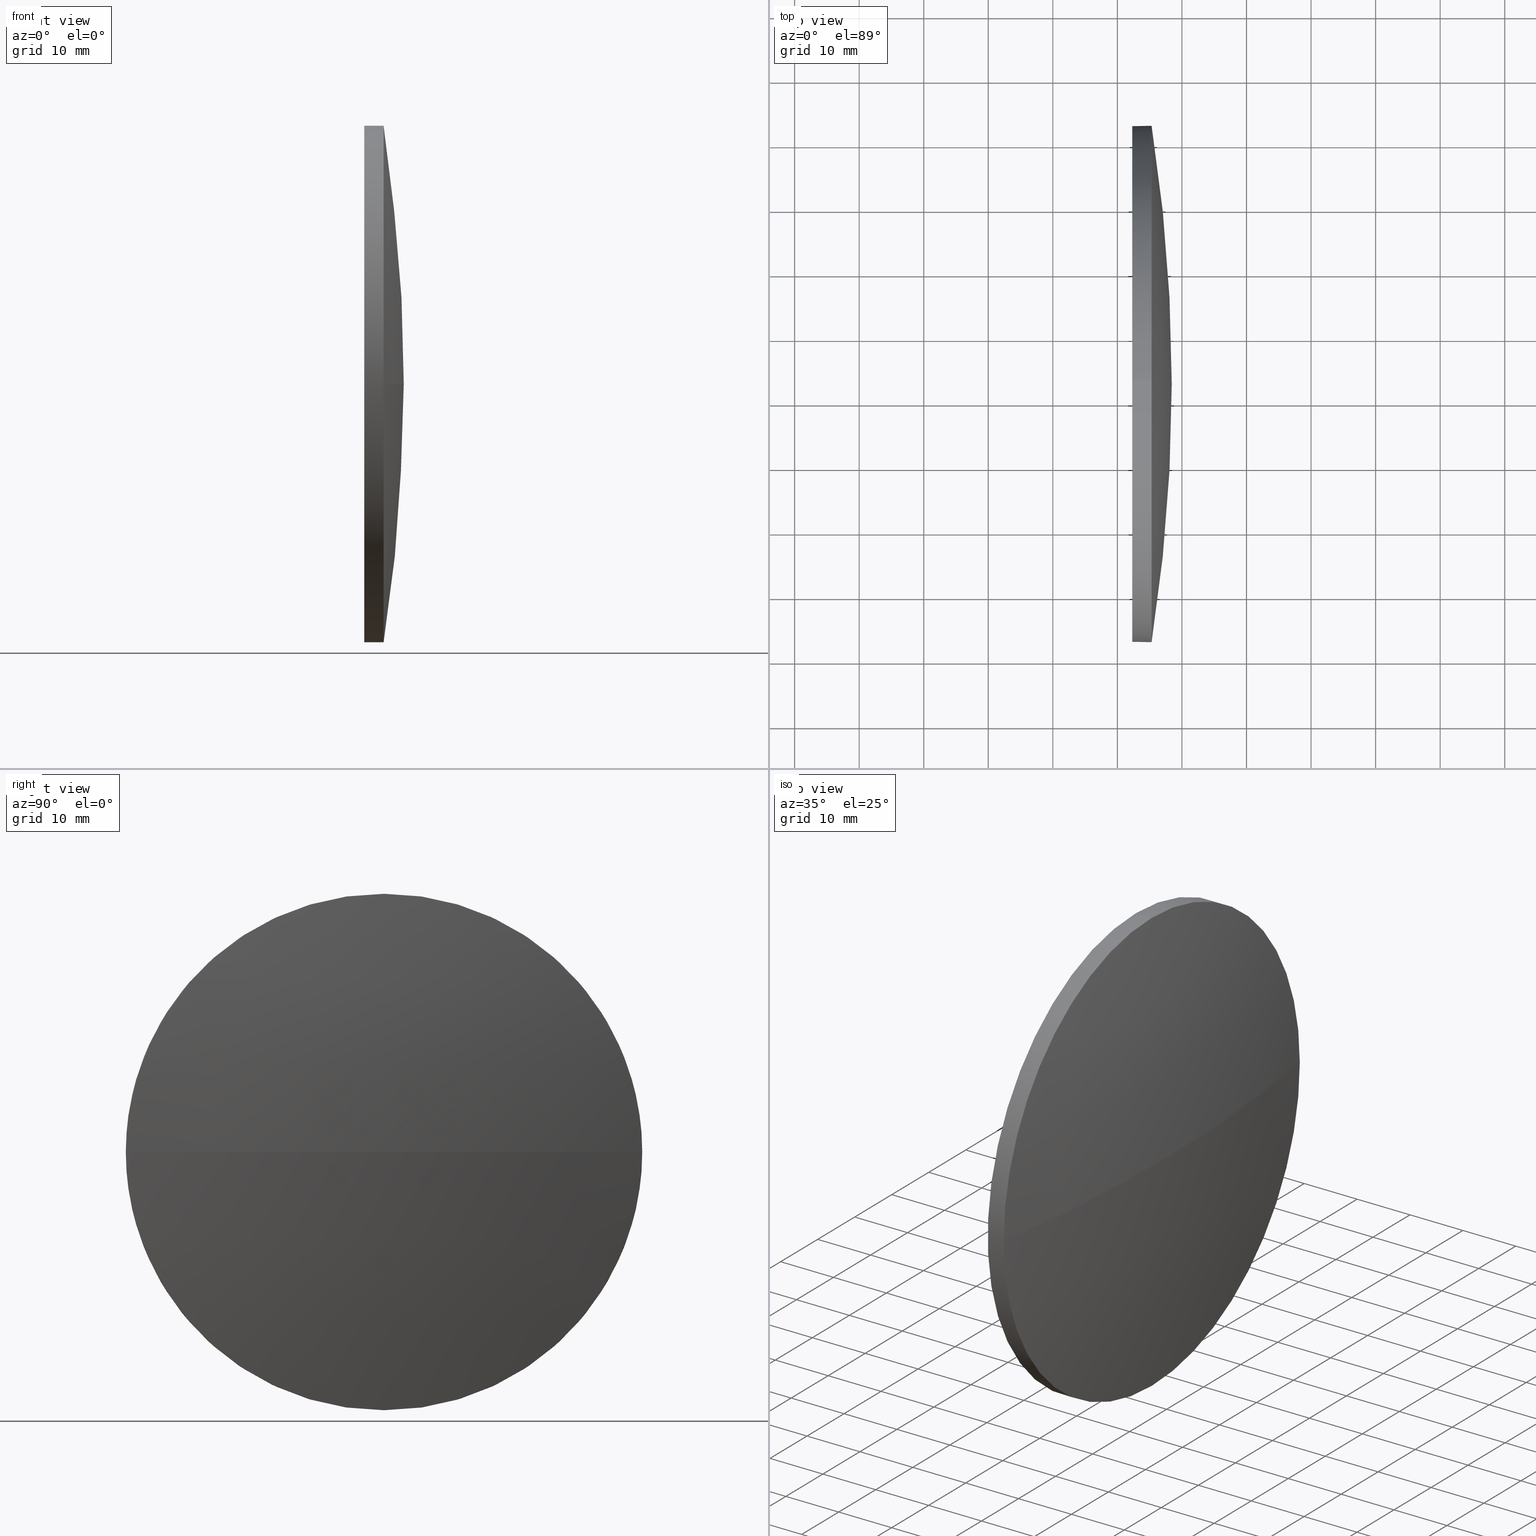
[diagram: canonical four-view strip — front | top / right | iso, engineering-drawing reading convention]
A machine part, canonical four-view strip (front | top / right | iso — engineering-drawing reading convention). The complete STEP part file that produces these views, byte-faithful:
ISO-10303-21;
HEADER;
FILE_DESCRIPTION (( 'STEP AP214' ),
    '1' );
FILE_NAME ('100080.STEP',
    '2019-05-10T08:49:28',
    ( '' ),
    ( '' ),
    'SwSTEP 2.0',
    'SolidWorks 2016',
    '' );
FILE_SCHEMA (( 'AUTOMOTIVE_DESIGN' ));
ENDSEC;

DATA;
#1 = CARTESIAN_POINT ( 'NONE',  ( 443.4758984606920600, 32.67751769391771400, 0.0000000000000000000 ) ) ;
#2 = DIRECTION ( 'NONE',  ( -1.000000000000000000, -0.0000000000000000000, -0.0000000000000000000 ) ) ;
#3 = COLOUR_RGB ( '',1.000000000000000000, 1.000000000000000000, 1.000000000000000000 ) ;
#4 = VERTEX_POINT ( 'NONE', #88 ) ;
#5 = PRODUCT_CONTEXT ( 'NONE', #73, 'mechanical' ) ;
#6 = VERTEX_POINT ( 'NONE', #179 ) ;
#7 = SPHERICAL_SURFACE ( 'NONE', #29, 257.9702564102560100 ) ;
#8 = PRESENTATION_LAYER_ASSIGNMENT (  '', '', ( #180 ) ) ;
#9 = CARTESIAN_POINT ( 'NONE',  ( 462.3008761382651500, 32.67751769391771400, 0.0000000000000000000 ) ) ;
#10 = LINE ( 'NONE', #117, #70 ) ;
#11 = PRESENTATION_STYLE_ASSIGNMENT (( #168 ) ) ;
#12 = CARTESIAN_POINT ( 'NONE',  ( 210.4506197280091400, 32.67751769391763600, 0.0000000000000000000 ) ) ;
#13 = CIRCLE ( 'NONE', #140, 40.00000000000000000 ) ;
#14 = SURFACE_SIDE_STYLE ('',( #118 ) ) ;
#15 = DIRECTION ( 'NONE',  ( -1.000000000000000000, -0.0000000000000000000, -0.0000000000000000000 ) ) ;
#16 = ORIENTED_EDGE ( 'NONE', *, *, #129, .F. ) ;
#17 =( NAMED_UNIT ( * ) PLANE_ANGLE_UNIT ( ) SI_UNIT ( $, .RADIAN. ) );
#18 = EDGE_CURVE ( 'NONE', #81, #6, #46, .T. ) ;
#19 = SURFACE_STYLE_FILL_AREA ( #33 ) ;
#20 = ADVANCED_FACE ( 'NONE', ( #125 ), #54, .T. ) ;
#21 = ADVANCED_BREP_SHAPE_REPRESENTATION ( '100080', ( #175, #55 ), #141 ) ;
#22 = DIRECTION ( 'NONE',  ( 0.0000000000000000000, 0.0000000000000000000, 1.000000000000000000 ) ) ;
#23 = DIRECTION ( 'NONE',  ( -1.000000000000000000, -0.0000000000000000000, -0.0000000000000000000 ) ) ;
#24 = DIRECTION ( 'NONE',  ( -1.000000000000000000, -0.0000000000000000000, -0.0000000000000000000 ) ) ;
#25 = PRODUCT_DEFINITION_SHAPE ( 'NONE', 'NONE',  #108 ) ;
#26 = EDGE_CURVE ( 'NONE', #92, #4, #119, .T. ) ;
#27 =( NAMED_UNIT ( * ) PLANE_ANGLE_UNIT ( ) SI_UNIT ( $, .RADIAN. ) );
#28 = ORIENTED_EDGE ( 'NONE', *, *, #79, .F. ) ;
#29 = AXIS2_PLACEMENT_3D ( 'NONE', #94, #166, #112 ) ;
#30 =( NAMED_UNIT ( * ) SI_UNIT ( $, .STERADIAN. ) SOLID_ANGLE_UNIT ( ) );
#31 = CARTESIAN_POINT ( 'NONE',  ( 462.3008761382651500, 32.67751769391771400, 40.00000000000000000 ) ) ;
#32 = CARTESIAN_POINT ( 'NONE',  ( 210.4506197280091400, 32.67751769391763600, 0.0000000000000000000 ) ) ;
#33 = FILL_AREA_STYLE ('',( #45 ) ) ;
#34 = PRODUCT_DEFINITION_CONTEXT ( 'detailed design', #173, 'design' ) ;
#35 = DIRECTION ( 'NONE',  ( 1.000000000000000000, 0.0000000000000000000, 0.0000000000000000000 ) ) ;
#36 = DIRECTION ( 'NONE',  ( 0.0000000000000000000, 0.0000000000000000000, 1.000000000000000000 ) ) ;
#37 = ORIENTED_EDGE ( 'NONE', *, *, #39, .T. ) ;
#38 = UNCERTAINTY_MEASURE_WITH_UNIT (LENGTH_MEASURE( 1.000000000000000100E-005 ), #130, 'distance_accuracy_value', 'NONE');
#39 = EDGE_CURVE ( 'NONE', #151, #66, #177, .T. ) ;
#40 = CLOSED_SHELL ( 'NONE', ( #20, #149, #48, #169, #99 ) ) ;
#41 = VECTOR ( 'NONE', #15, 1000.000000000000000 ) ;
#42 = AXIS2_PLACEMENT_3D ( 'NONE', #1, #77, #142 ) ;
#43 = CARTESIAN_POINT ( 'NONE',  ( 465.3008761382651500, 32.67751769391772100, -40.00000000000000000 ) ) ;
#44 = FACE_OUTER_BOUND ( 'NONE', #100, .T. ) ;
#45 = FILL_AREA_STYLE_COLOUR ( '', #3 ) ;
#46 = CIRCLE ( 'NONE', #106, 40.00000000000000000 ) ;
#47 = APPLICATION_PROTOCOL_DEFINITION ( 'draft international standard', 'automotive_design', 1998, #73 ) ;
#48 = ADVANCED_FACE ( 'NONE', ( #135 ), #178, .T. ) ;
#49 = CARTESIAN_POINT ( 'NONE',  ( 468.4208761382651000, 32.67751769391765000, 0.0000000000000000000 ) ) ;
#50 = CIRCLE ( 'NONE', #156, 40.00000000000000000 ) ;
#51 = EDGE_CURVE ( 'NONE', #4, #92, #13, .T. ) ;
#52 = EDGE_LOOP ( 'NONE', ( #80, #176, #98, #57 ) ) ;
#53 = MECHANICAL_DESIGN_GEOMETRIC_PRESENTATION_REPRESENTATION (  '', ( #180 ), #90 ) ;
#54 = CYLINDRICAL_SURFACE ( 'NONE', #114, 40.00000000000000000 ) ;
#55 = AXIS2_PLACEMENT_3D ( 'NONE', #172, #36, #35 ) ;
#56 = DIRECTION ( 'NONE',  ( 0.0000000000000000000, 0.0000000000000000000, 1.000000000000000000 ) ) ;
#57 = ORIENTED_EDGE ( 'NONE', *, *, #138, .F. ) ;
#58 = DIRECTION ( 'NONE',  ( 0.0000000000000000000, 0.0000000000000000000, 1.000000000000000000 ) ) ;
#59 = CIRCLE ( 'NONE', #162, 40.00000000000000000 ) ;
#60 = PLANE ( 'NONE',  #182 ) ;
#61 =( NAMED_UNIT ( * ) SI_UNIT ( $, .STERADIAN. ) SOLID_ANGLE_UNIT ( ) );
#62 = ORIENTED_EDGE ( 'NONE', *, *, #51, .T. ) ;
#63 =( LENGTH_UNIT ( ) NAMED_UNIT ( * ) SI_UNIT ( .MILLI., .METRE. ) );
#64 = DIRECTION ( 'NONE',  ( 0.0000000000000000000, 0.0000000000000000000, -1.000000000000000000 ) ) ;
#65 = DIRECTION ( 'NONE',  ( 0.0000000000000000000, 0.0000000000000000000, 1.000000000000000000 ) ) ;
#66 = VERTEX_POINT ( 'NONE', #128 ) ;
#67 = ORIENTED_EDGE ( 'NONE', *, *, #91, .T. ) ;
#68 = CARTESIAN_POINT ( 'NONE',  ( 210.4506197280091400, 32.67751769391763600, 0.0000000000000000000 ) ) ;
#69 = CARTESIAN_POINT ( 'NONE',  ( 462.3008761382651500, 32.67751769391771400, 0.0000000000000000000 ) ) ;
#70 = VECTOR ( 'NONE', #103, 1000.000000000000000 ) ;
#71 = UNCERTAINTY_MEASURE_WITH_UNIT (LENGTH_MEASURE( 1.000000000000000100E-005 ), #63, 'distance_accuracy_value', 'NONE');
#72 = CARTESIAN_POINT ( 'NONE',  ( 462.3008761382651500, 32.67751769391771400, 0.0000000000000000000 ) ) ;
#73 = APPLICATION_CONTEXT ( 'automotive_design' ) ;
#74 = ORIENTED_EDGE ( 'NONE', *, *, #91, .F. ) ;
#75 = DIRECTION ( 'NONE',  ( 0.0000000000000000000, 1.224646799147353200E-016, -1.000000000000000000 ) ) ;
#76 = CARTESIAN_POINT ( 'NONE',  ( 465.3008761382651500, 32.67751769391771400, 0.0000000000000000000 ) ) ;
#77 = DIRECTION ( 'NONE',  ( -1.000000000000000000, -0.0000000000000000000, -0.0000000000000000000 ) ) ;
#78 = CIRCLE ( 'NONE', #143, 40.00000000000000000 ) ;
#79 = EDGE_CURVE ( 'NONE', #123, #66, #50, .T. ) ;
#80 = ORIENTED_EDGE ( 'NONE', *, *, #39, .F. ) ;
#81 = VERTEX_POINT ( 'NONE', #43 ) ;
#82 = EDGE_CURVE ( 'NONE', #123, #92, #10, .T. ) ;
#83 = CYLINDRICAL_SURFACE ( 'NONE', #42, 40.00000000000000000 ) ;
#84 = PRODUCT_RELATED_PRODUCT_CATEGORY ( 'part', '', ( #93 ) ) ;
#85 = DIRECTION ( 'NONE',  ( 0.0000000000000000000, 1.000000000000000000, 0.0000000000000000000 ) ) ;
#86 = FACE_OUTER_BOUND ( 'NONE', #121, .T. ) ;
#87 = DIRECTION ( 'NONE',  ( 1.000000000000000000, 0.0000000000000000000, 0.0000000000000000000 ) ) ;
#88 = CARTESIAN_POINT ( 'NONE',  ( 462.3008761382651500, 32.67751769391772100, -40.00000000000000000 ) ) ;
#89 = ORIENTED_EDGE ( 'NONE', *, *, #26, .T. ) ;
#90 =( GEOMETRIC_REPRESENTATION_CONTEXT ( 3 ) GLOBAL_UNCERTAINTY_ASSIGNED_CONTEXT ( ( #71 ) ) GLOBAL_UNIT_ASSIGNED_CONTEXT ( ( #63, #27, #146 ) ) REPRESENTATION_CONTEXT ( 'NONE', 'WORKASPACE' ) );
#91 = EDGE_CURVE ( 'NONE', #6, #123, #78, .T. ) ;
#92 = VERTEX_POINT ( 'NONE', #31 ) ;
#93 = PRODUCT ( '100080', '100080', '', ( #5 ) ) ;
#94 = CARTESIAN_POINT ( 'NONE',  ( 210.4506197280091400, 32.67751769391763600, 0.0000000000000000000 ) ) ;
#95 = CARTESIAN_POINT ( 'NONE',  ( 443.4758984606920600, 32.67751769391772100, -40.00000000000000000 ) ) ;
#96 = DIRECTION ( 'NONE',  ( 0.0000000000000000000, 0.0000000000000000000, 1.000000000000000000 ) ) ;
#97 = UNCERTAINTY_MEASURE_WITH_UNIT (LENGTH_MEASURE( 1.000000000000000100E-005 ), #133, 'distance_accuracy_value', 'NONE');
#98 = ORIENTED_EDGE ( 'NONE', *, *, #18, .F. ) ;
#99 = ADVANCED_FACE ( 'NONE', ( #44 ), #60, .F. ) ;
#100 = EDGE_LOOP ( 'NONE', ( #89, #62 ) ) ;
#101 = STYLED_ITEM ( 'NONE', ( #11 ), #21 ) ;
#102 = ORIENTED_EDGE ( 'NONE', *, *, #138, .T. ) ;
#103 = DIRECTION ( 'NONE',  ( -1.000000000000000000, -0.0000000000000000000, -0.0000000000000000000 ) ) ;
#104 = DIRECTION ( 'NONE',  ( -0.0000000000000000000, 0.0000000000000000000, -1.000000000000000000 ) ) ;
#105 = EDGE_CURVE ( 'NONE', #151, #6, #160, .T. ) ;
#106 = AXIS2_PLACEMENT_3D ( 'NONE', #163, #23, #56 ) ;
#107 = DIRECTION ( 'NONE',  ( 0.0000000000000000000, 0.0000000000000000000, 1.000000000000000000 ) ) ;
#108 = PRODUCT_DEFINITION ( 'δ֪', '', #124, #34 ) ;
#109 = DIRECTION ( 'NONE',  ( -1.000000000000000000, -0.0000000000000000000, -0.0000000000000000000 ) ) ;
#110 =( NAMED_UNIT ( * ) PLANE_ANGLE_UNIT ( ) SI_UNIT ( $, .RADIAN. ) );
#111 = CARTESIAN_POINT ( 'NONE',  ( 465.3008761382651500, 32.67751769391771400, 0.0000000000000000000 ) ) ;
#112 = DIRECTION ( 'NONE',  ( 0.0000000000000000000, 1.000000000000000000, 0.0000000000000000000 ) ) ;
#113 =( GEOMETRIC_REPRESENTATION_CONTEXT ( 3 ) GLOBAL_UNCERTAINTY_ASSIGNED_CONTEXT ( ( #97 ) ) GLOBAL_UNIT_ASSIGNED_CONTEXT ( ( #133, #110, #30 ) ) REPRESENTATION_CONTEXT ( 'NONE', 'WORKASPACE' ) );
#114 = AXIS2_PLACEMENT_3D ( 'NONE', #183, #157, #107 ) ;
#115 = FACE_OUTER_BOUND ( 'NONE', #52, .T. ) ;
#116 = AXIS2_PLACEMENT_3D ( 'NONE', #9, #139, #22 ) ;
#117 = CARTESIAN_POINT ( 'NONE',  ( 443.4758984606920600, 32.67751769391771400, 40.00000000000000000 ) ) ;
#118 = SURFACE_STYLE_FILL_AREA ( #186 ) ;
#119 = CIRCLE ( 'NONE', #116, 40.00000000000000000 ) ;
#120 = SURFACE_SIDE_STYLE ('',( #19 ) ) ;
#121 = EDGE_LOOP ( 'NONE', ( #16, #127, #67, #150, #132 ) ) ;
#122 = APPLICATION_PROTOCOL_DEFINITION ( 'draft international standard', 'automotive_design', 1998, #173 ) ;
#123 = VERTEX_POINT ( 'NONE', #171 ) ;
#124 = PRODUCT_DEFINITION_FORMATION_WITH_SPECIFIED_SOURCE ( '�κ�', '', #93, .NOT_KNOWN. ) ;
#125 = FACE_OUTER_BOUND ( 'NONE', #126, .T. ) ;
#126 = EDGE_LOOP ( 'NONE', ( #102, #165, #161, #147, #184 ) ) ;
#127 = ORIENTED_EDGE ( 'NONE', *, *, #18, .T. ) ;
#128 = CARTESIAN_POINT ( 'NONE',  ( 465.3008761382652100, 72.67751769391753700, 0.0000000000000000000 ) ) ;
#129 = EDGE_CURVE ( 'NONE', #81, #4, #153, .T. ) ;
#130 =( LENGTH_UNIT ( ) NAMED_UNIT ( * ) SI_UNIT ( .MILLI., .METRE. ) );
#131 = DIRECTION ( 'NONE',  ( 1.000000000000000000, 0.0000000000000000000, 0.0000000000000000000 ) ) ;
#132 = ORIENTED_EDGE ( 'NONE', *, *, #51, .F. ) ;
#133 =( LENGTH_UNIT ( ) NAMED_UNIT ( * ) SI_UNIT ( .MILLI., .METRE. ) );
#134 = DIRECTION ( 'NONE',  ( 0.0000000000000000000, 1.000000000000000000, 1.224646799147353200E-016 ) ) ;
#135 = FACE_OUTER_BOUND ( 'NONE', #181, .T. ) ;
#136 = AXIS2_PLACEMENT_3D ( 'NONE', #12, #164, #87 ) ;
#137 = SHAPE_DEFINITION_REPRESENTATION ( #25, #21 ) ;
#138 = EDGE_CURVE ( 'NONE', #66, #81, #59, .T. ) ;
#139 = DIRECTION ( 'NONE',  ( -1.000000000000000000, -0.0000000000000000000, -0.0000000000000000000 ) ) ;
#140 = AXIS2_PLACEMENT_3D ( 'NONE', #69, #24, #58 ) ;
#141 =( GEOMETRIC_REPRESENTATION_CONTEXT ( 3 ) GLOBAL_UNCERTAINTY_ASSIGNED_CONTEXT ( ( #38 ) ) GLOBAL_UNIT_ASSIGNED_CONTEXT ( ( #130, #17, #61 ) ) REPRESENTATION_CONTEXT ( 'NONE', 'WORKASPACE' ) );
#142 = DIRECTION ( 'NONE',  ( 0.0000000000000000000, 0.0000000000000000000, 1.000000000000000000 ) ) ;
#143 = AXIS2_PLACEMENT_3D ( 'NONE', #167, #159, #96 ) ;
#144 = SURFACE_STYLE_USAGE ( .BOTH. , #120 ) ;
#145 = DIRECTION ( 'NONE',  ( 0.0000000000000000000, 0.0000000000000000000, 1.000000000000000000 ) ) ;
#146 =( NAMED_UNIT ( * ) SI_UNIT ( $, .STERADIAN. ) SOLID_ANGLE_UNIT ( ) );
#147 = ORIENTED_EDGE ( 'NONE', *, *, #82, .F. ) ;
#148 = AXIS2_PLACEMENT_3D ( 'NONE', #68, #104, #85 ) ;
#149 = ADVANCED_FACE ( 'NONE', ( #115 ), #7, .T. ) ;
#150 = ORIENTED_EDGE ( 'NONE', *, *, #82, .T. ) ;
#151 = VERTEX_POINT ( 'NONE', #49 ) ;
#152 = AXIS2_PLACEMENT_3D ( 'NONE', #32, #75, #134 ) ;
#153 = LINE ( 'NONE', #95, #41 ) ;
#154 = PRESENTATION_LAYER_ASSIGNMENT (  '', '', ( #101 ) ) ;
#155 = PRESENTATION_STYLE_ASSIGNMENT (( #144 ) ) ;
#156 = AXIS2_PLACEMENT_3D ( 'NONE', #111, #109, #65 ) ;
#157 = DIRECTION ( 'NONE',  ( -1.000000000000000000, -0.0000000000000000000, -0.0000000000000000000 ) ) ;
#158 = ORIENTED_EDGE ( 'NONE', *, *, #105, .F. ) ;
#159 = DIRECTION ( 'NONE',  ( -1.000000000000000000, -0.0000000000000000000, -0.0000000000000000000 ) ) ;
#160 = CIRCLE ( 'NONE', #152, 257.9702564102560100 ) ;
#161 = ORIENTED_EDGE ( 'NONE', *, *, #26, .F. ) ;
#162 = AXIS2_PLACEMENT_3D ( 'NONE', #76, #2, #145 ) ;
#163 = CARTESIAN_POINT ( 'NONE',  ( 465.3008761382651500, 32.67751769391771400, 0.0000000000000000000 ) ) ;
#164 = DIRECTION ( 'NONE',  ( -0.0000000000000000000, 0.0000000000000000000, 1.000000000000000000 ) ) ;
#165 = ORIENTED_EDGE ( 'NONE', *, *, #129, .T. ) ;
#166 = DIRECTION ( 'NONE',  ( -0.0000000000000000000, 0.0000000000000000000, -1.000000000000000000 ) ) ;
#167 = CARTESIAN_POINT ( 'NONE',  ( 465.3008761382651500, 32.67751769391771400, 0.0000000000000000000 ) ) ;
#168 = SURFACE_STYLE_USAGE ( .BOTH. , #14 ) ;
#169 = ADVANCED_FACE ( 'NONE', ( #86 ), #83, .T. ) ;
#170 = MECHANICAL_DESIGN_GEOMETRIC_PRESENTATION_REPRESENTATION (  '', ( #101 ), #113 ) ;
#171 = CARTESIAN_POINT ( 'NONE',  ( 465.3008761382651500, 32.67751769391771400, 40.00000000000000000 ) ) ;
#172 = CARTESIAN_POINT ( 'NONE',  ( 0.0000000000000000000, 0.0000000000000000000, 0.0000000000000000000 ) ) ;
#173 = APPLICATION_CONTEXT ( 'automotive_design' ) ;
#174 = COLOUR_RGB ( '',1.000000000000000000, 1.000000000000000000, 1.000000000000000000 ) ;
#175 = MANIFOLD_SOLID_BREP ( '��ת1', #40 ) ;
#176 = ORIENTED_EDGE ( 'NONE', *, *, #105, .T. ) ;
#177 = CIRCLE ( 'NONE', #136, 257.9702564102559600 ) ;
#178 = SPHERICAL_SURFACE ( 'NONE', #148, 257.9702564102560100 ) ;
#179 = CARTESIAN_POINT ( 'NONE',  ( 465.3008761382652100, -7.322482306082179100, -4.898587196589389400E-015 ) ) ;
#180 = STYLED_ITEM ( 'NONE', ( #155 ), #175 ) ;
#181 = EDGE_LOOP ( 'NONE', ( #158, #37, #28, #74 ) ) ;
#182 = AXIS2_PLACEMENT_3D ( 'NONE', #72, #131, #64 ) ;
#183 = CARTESIAN_POINT ( 'NONE',  ( 443.4758984606920600, 32.67751769391771400, 0.0000000000000000000 ) ) ;
#184 = ORIENTED_EDGE ( 'NONE', *, *, #79, .T. ) ;
#185 = FILL_AREA_STYLE_COLOUR ( '', #174 ) ;
#186 = FILL_AREA_STYLE ('',( #185 ) ) ;
ENDSEC;
END-ISO-10303-21;
